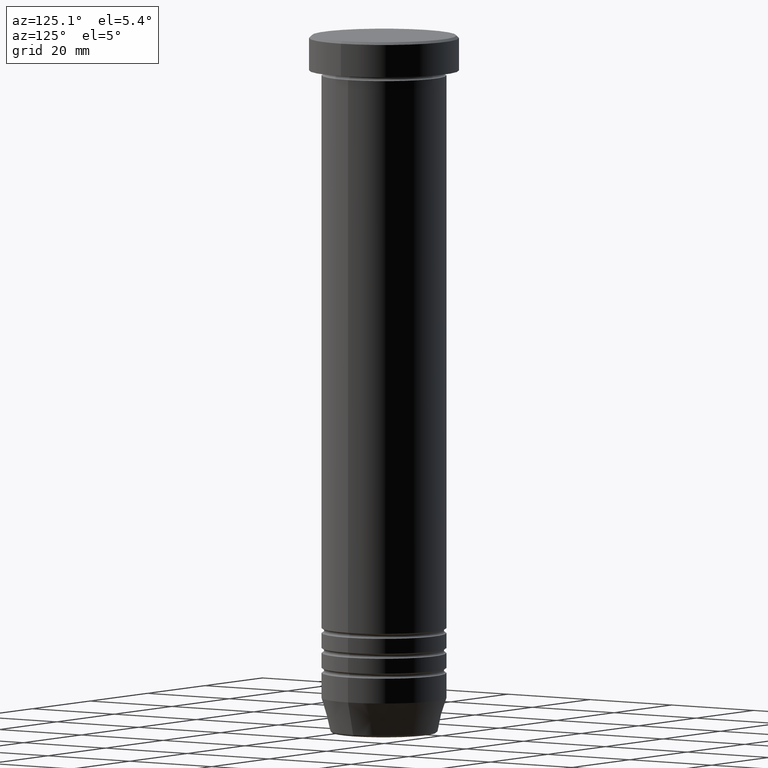
[diagram: clean part render]
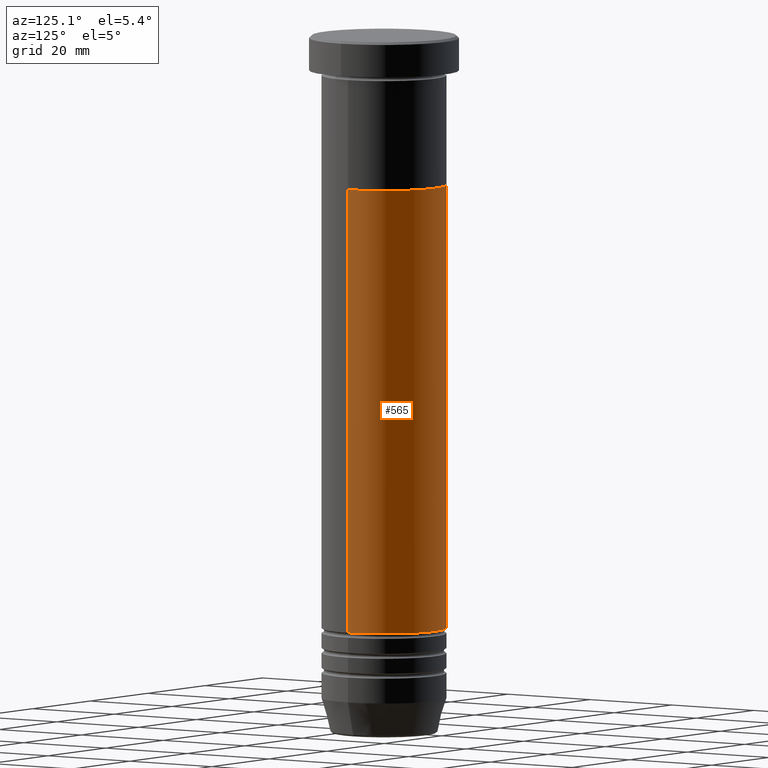
[diagram: same view with one face highlighted and labeled with its STEP entity id]
A machine part, auxiliary view. The second image highlights one B-rep face of the part: STEP entity #565.
In plain terms, the highlighted cylindrical surface (partial cylindrical patch) has radius 12.5 mm, axis along (-0, -0, 1).
Its self-contained STEP definition (entity closure, byte-faithful):
#30 = VERTEX_POINT ( 'NONE', #226 ) ;
#34 = EDGE_LOOP ( 'NONE', ( #561, #554, #436, #823 ) ) ;
#59 = CARTESIAN_POINT ( 'NONE',  ( -12.50000000000000000, 1.530808498934191521E-15, -30.00000000000000000 ) ) ;
#72 = CARTESIAN_POINT ( 'NONE',  ( 0.000000000000000000, 0.000000000000000000, 0.000000000000000000 ) ) ;
#105 = LINE ( 'NONE', #947, #912 ) ;
#138 = LINE ( 'NONE', #461, #368 ) ;
#226 = CARTESIAN_POINT ( 'NONE',  ( 12.50000000000000000, 0.000000000000000000, -30.00000000000000000 ) ) ;
#292 = DIRECTION ( 'NONE',  ( 1.000000000000000000, 0.000000000000000000, 0.000000000000000000 ) ) ;
#308 = CARTESIAN_POINT ( 'NONE',  ( 12.49999999999999289, 0.000000000000000000, -119.0000000000000000 ) ) ;
#314 = DIRECTION ( 'NONE',  ( 1.000000000000000000, 0.000000000000000000, 0.000000000000000000 ) ) ;
#317 = CARTESIAN_POINT ( 'NONE',  ( 0.000000000000000000, 0.000000000000000000, -119.0000000000000000 ) ) ;
#350 = EDGE_CURVE ( 'NONE', #30, #415, #594, .T. ) ;
#353 = CIRCLE ( 'NONE', #521, 12.49999999999999289 ) ;
#368 = VECTOR ( 'NONE', #491, 1000.000000000000000 ) ;
#415 = VERTEX_POINT ( 'NONE', #59 ) ;
#436 = ORIENTED_EDGE ( 'NONE', *, *, #350, .F. ) ;
#461 = CARTESIAN_POINT ( 'NONE',  ( 12.49999999999999645, 0.000000000000000000, 0.000000000000000000 ) ) ;
#491 = DIRECTION ( 'NONE',  ( -0.000000000000000000, -0.000000000000000000, 1.000000000000000000 ) ) ;
#521 = AXIS2_PLACEMENT_3D ( 'NONE', #317, #974, #314 ) ;
#545 = FACE_OUTER_BOUND ( 'NONE', #34, .T. ) ;
#554 = ORIENTED_EDGE ( 'NONE', *, *, #1038, .T. ) ;
#560 = AXIS2_PLACEMENT_3D ( 'NONE', #72, #976, #884 ) ;
#561 = ORIENTED_EDGE ( 'NONE', *, *, #817, .T. ) ;
#565 = ADVANCED_FACE ( 'NONE', ( #545 ), #720, .T. ) ;
#579 = CARTESIAN_POINT ( 'NONE',  ( 0.000000000000000000, 0.000000000000000000, -30.00000000000000000 ) ) ;
#594 = CIRCLE ( 'NONE', #748, 12.50000000000000000 ) ;
#669 = CARTESIAN_POINT ( 'NONE',  ( -12.49999999999999289, 1.530808498934190930E-15, -119.0000000000000000 ) ) ;
#677 = DIRECTION ( 'NONE',  ( -0.000000000000000000, -0.000000000000000000, 1.000000000000000000 ) ) ;
#720 = CYLINDRICAL_SURFACE ( 'NONE', #560, 12.49999999999999645 ) ;
#724 = VERTEX_POINT ( 'NONE', #669 ) ;
#748 = AXIS2_PLACEMENT_3D ( 'NONE', #579, #918, #292 ) ;
#817 = EDGE_CURVE ( 'NONE', #849, #724, #353, .T. ) ;
#823 = ORIENTED_EDGE ( 'NONE', *, *, #940, .F. ) ;
#849 = VERTEX_POINT ( 'NONE', #308 ) ;
#884 = DIRECTION ( 'NONE',  ( 1.000000000000000000, 0.000000000000000000, 0.000000000000000000 ) ) ;
#912 = VECTOR ( 'NONE', #677, 1000.000000000000000 ) ;
#918 = DIRECTION ( 'NONE',  ( -0.000000000000000000, -0.000000000000000000, 1.000000000000000000 ) ) ;
#940 = EDGE_CURVE ( 'NONE', #849, #30, #138, .T. ) ;
#947 = CARTESIAN_POINT ( 'NONE',  ( -12.49999999999999645, 1.530808498934191127E-15, 0.000000000000000000 ) ) ;
#974 = DIRECTION ( 'NONE',  ( -0.000000000000000000, -0.000000000000000000, 1.000000000000000000 ) ) ;
#976 = DIRECTION ( 'NONE',  ( -0.000000000000000000, -0.000000000000000000, 1.000000000000000000 ) ) ;
#1038 = EDGE_CURVE ( 'NONE', #724, #415, #105, .T. ) ;